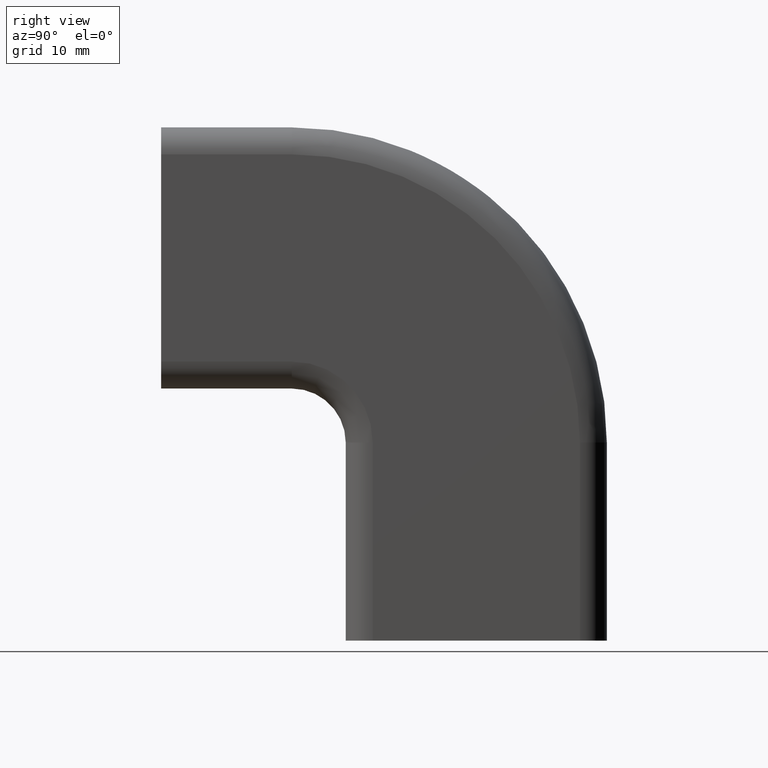
[diagram: clean part render]
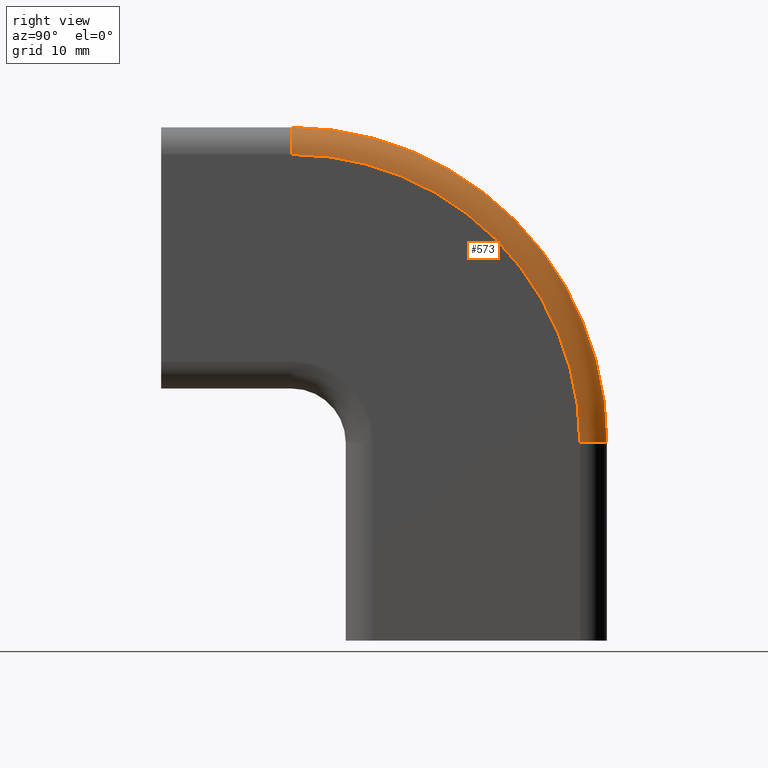
[diagram: same view with one face highlighted and labeled with its STEP entity id]
A machine part, right view. The second image highlights one B-rep face of the part: STEP entity #573.
In plain terms, the highlighted face is a freeform B-spline surface patch.
Its self-contained STEP definition (entity closure, byte-faithful):
#17=B_SPLINE_SURFACE_WITH_KNOTS('',3,3,((#1154,#1155,#1156,#1157,#1158,
#1159,#1160,#1161,#1162,#1163,#1164),(#1165,#1166,#1167,#1168,#1169,#1170,
#1171,#1172,#1173,#1174,#1175),(#1176,#1177,#1178,#1179,#1180,#1181,#1182,
#1183,#1184,#1185,#1186),(#1187,#1188,#1189,#1190,#1191,#1192,#1193,#1194,
#1195,#1196,#1197),(#1198,#1199,#1200,#1201,#1202,#1203,#1204,#1205,#1206,
#1207,#1208),(#1209,#1210,#1211,#1212,#1213,#1214,#1215,#1216,#1217,#1218,
#1219),(#1220,#1221,#1222,#1223,#1224,#1225,#1226,#1227,#1228,#1229,#1230)),
 .UNSPECIFIED.,.F.,.F.,.F.,(4,1,1,1,4),(4,1,1,1,1,1,1,1,4),(-0.00636065542696376,
1.17054193209677,2.34108386419354,3.51162579629031,4.68216772838708),(-0.00636065542696376,
6.62756652958003,13.2551330591601,19.8826995887401,26.5102661183201,33.1378326479002,
39.7653991774802,46.3929657070602,53.0268928920672),.UNSPECIFIED.);
#155=FACE_OUTER_BOUND('',#199,.T.);
#199=EDGE_LOOP('',(#517,#518,#519,#520));
#225=CIRCLE('',#619,3.);
#226=CIRCLE('',#621,3.);
#232=CIRCLE('',#632,32.);
#236=CIRCLE('',#641,35.);
#279=VERTEX_POINT('',#944);
#280=VERTEX_POINT('',#946);
#281=VERTEX_POINT('',#950);
#282=VERTEX_POINT('',#952);
#340=EDGE_CURVE('',#279,#280,#225,.T.);
#342=EDGE_CURVE('',#281,#282,#226,.T.);
#357=EDGE_CURVE('',#281,#279,#232,.T.);
#366=EDGE_CURVE('',#282,#280,#236,.T.);
#517=ORIENTED_EDGE('',*,*,#357,.T.);
#518=ORIENTED_EDGE('',*,*,#340,.T.);
#519=ORIENTED_EDGE('',*,*,#366,.F.);
#520=ORIENTED_EDGE('',*,*,#342,.F.);
#573=ADVANCED_FACE('',(#155),#17,.F.);
#619=AXIS2_PLACEMENT_3D('',#948,#755,#756);
#621=AXIS2_PLACEMENT_3D('',#953,#760,#761);
#632=AXIS2_PLACEMENT_3D('',#981,#791,#792);
#641=AXIS2_PLACEMENT_3D('',#995,#814,#815);
#755=DIRECTION('center_axis',(0.,0.,1.));
#756=DIRECTION('ref_axis',(1.,0.,0.));
#760=DIRECTION('center_axis',(0.,-1.,0.));
#761=DIRECTION('ref_axis',(1.,0.,0.));
#791=DIRECTION('center_axis',(-1.,0.,0.));
#792=DIRECTION('ref_axis',(0.,-1.,0.));
#814=DIRECTION('center_axis',(-1.,0.,0.));
#815=DIRECTION('ref_axis',(0.,-1.,0.));
#944=CARTESIAN_POINT('',(15.,6.99500000000262,22.));
#946=CARTESIAN_POINT('',(12.,9.99500000000262,22.));
#948=CARTESIAN_POINT('Origin',(12.,6.99500000000262,22.));
#950=CARTESIAN_POINT('',(15.,-25.0049999999973,54.));
#952=CARTESIAN_POINT('',(12.,-25.0049999999973,57.));
#953=CARTESIAN_POINT('Origin',(12.,-25.0049999999973,54.));
#981=CARTESIAN_POINT('Origin',(15.,-25.0049999999973,22.));
#995=CARTESIAN_POINT('Origin',(12.,-25.0049999999973,22.));
#1154=CARTESIAN_POINT('Ctrl Pts',(14.9999930844305,-25.0110192487128,53.9936391586718));
#1155=CARTESIAN_POINT('Ctrl Pts',(14.9999930844305,-22.9184072849306,53.9940354045308));
#1156=CARTESIAN_POINT('Ctrl Pts',(14.9999930844305,-18.7234951160519,53.5817521289283));
#1157=CARTESIAN_POINT('Ctrl Pts',(14.9999930844305,-12.68305651139,51.7488050904924));
#1158=CARTESIAN_POINT('Ctrl Pts',(14.9999930844305,-7.11559542026988,48.7732271924219));
#1159=CARTESIAN_POINT('Ctrl Pts',(14.9999930844305,-2.23627853268394,44.7687214673135));
#1160=CARTESIAN_POINT('Ctrl Pts',(14.9999930844305,1.76822719242448,39.8894045797275));
#1161=CARTESIAN_POINT('Ctrl Pts',(14.9999930844305,4.74380509049498,34.3219434886074));
#1162=CARTESIAN_POINT('Ctrl Pts',(14.9999930844305,6.57675212893094,28.2815048839455));
#1163=CARTESIAN_POINT('Ctrl Pts',(14.9999930844305,6.98903540453342,24.0865927150668));
#1164=CARTESIAN_POINT('Ctrl Pts',(14.9999930844305,6.98863915867437,21.9939807512847));
#1165=CARTESIAN_POINT('Ctrl Pts',(15.0008461936363,-25.011093046795,54.3858922997601));
#1166=CARTESIAN_POINT('Ctrl Pts',(15.0008461936363,-22.8928249326825,54.3862934037312));
#1167=CARTESIAN_POINT('Ctrl Pts',(15.0008461936363,-18.6464816819355,53.9689553918084));
#1168=CARTESIAN_POINT('Ctrl Pts',(15.0008461936363,-12.5319851995661,52.1135357853188));
#1169=CARTESIAN_POINT('Ctrl Pts',(15.0008461936363,-6.8962650995209,49.1014762675338));
#1170=CARTESIAN_POINT('Ctrl Pts',(15.0008461936363,-1.95712609023042,45.047873909767));
#1171=CARTESIAN_POINT('Ctrl Pts',(15.0008461936363,2.09647626753643,40.1087349004765));
#1172=CARTESIAN_POINT('Ctrl Pts',(15.0008461936363,5.10853578532149,34.4730148004312));
#1173=CARTESIAN_POINT('Ctrl Pts',(15.0008461936363,6.96395539181104,28.3585183180619));
#1174=CARTESIAN_POINT('Ctrl Pts',(15.0008461936363,7.38129340373379,24.1121750673149));
#1175=CARTESIAN_POINT('Ctrl Pts',(15.0008461936363,7.38089229976272,21.9939069532023));
#1176=CARTESIAN_POINT('Ctrl Pts',(14.8450929859816,-25.0112419370014,55.1772767001776));
#1177=CARTESIAN_POINT('Ctrl Pts',(14.8450929859816,-22.8412116442867,55.1776876055592));
#1178=CARTESIAN_POINT('Ctrl Pts',(14.8450929859816,-18.4911043911045,54.7501514867175));
#1179=CARTESIAN_POINT('Ctrl Pts',(14.8450929859816,-12.2271935560977,52.8493926899653));
#1180=CARTESIAN_POINT('Ctrl Pts',(14.8450929859816,-6.45375852354374,49.7637302313244));
#1181=CARTESIAN_POINT('Ctrl Pts',(14.8450929859816,-1.39392629613017,45.6110737038672));
#1182=CARTESIAN_POINT('Ctrl Pts',(14.8450929859816,2.75873023132698,40.5512414764537));
#1183=CARTESIAN_POINT('Ctrl Pts',(14.8450929859816,5.84439268996791,34.7778064438997));
#1184=CARTESIAN_POINT('Ctrl Pts',(14.8450929859816,7.74515148672011,28.5138956088929));
#1185=CARTESIAN_POINT('Ctrl Pts',(14.8450929859816,8.17268760556176,24.1637883557108));
#1186=CARTESIAN_POINT('Ctrl Pts',(14.8450929859816,8.17227670018017,21.993758062996));
#1187=CARTESIAN_POINT('Ctrl Pts',(14.1762387344188,-25.011429880525,56.1762381256584));
#1188=CARTESIAN_POINT('Ctrl Pts',(14.1762387344188,-22.77606039273,56.1766614033221));
#1189=CARTESIAN_POINT('Ctrl Pts',(14.1762387344188,-18.2949722461518,55.7362522541053));
#1190=CARTESIAN_POINT('Ctrl Pts',(14.1762387344188,-11.8424562596924,53.778261975268));
#1191=CARTESIAN_POINT('Ctrl Pts',(14.1762387344188,-5.89518420783874,50.5996908129956));
#1192=CARTESIAN_POINT('Ctrl Pts',(14.1762387344188,-0.683001404449067,46.3219985955483));
#1193=CARTESIAN_POINT('Ctrl Pts',(14.1762387344188,3.59469081299823,41.1098157921586));
#1194=CARTESIAN_POINT('Ctrl Pts',(14.1762387344188,6.77326197527066,35.162543740305));
#1195=CARTESIAN_POINT('Ctrl Pts',(14.1762387344188,8.73125225410796,28.7100277538456));
#1196=CARTESIAN_POINT('Ctrl Pts',(14.1762387344188,9.17166140332465,24.2289396072674));
#1197=CARTESIAN_POINT('Ctrl Pts',(14.1762387344188,9.17123812566099,21.9935701194724));
#1198=CARTESIAN_POINT('Ctrl Pts',(13.1790834520298,-25.0115554905201,56.8438830509998));
#1199=CARTESIAN_POINT('Ctrl Pts',(13.1790834520298,-22.7325172674681,56.8443145975427));
#1200=CARTESIAN_POINT('Ctrl Pts',(13.1790834520298,-18.1638894756525,56.3953018994957));
#1201=CARTESIAN_POINT('Ctrl Pts',(13.1790834520298,-11.5853213023431,54.3990615865638));
#1202=CARTESIAN_POINT('Ctrl Pts',(13.1790834520298,-5.52186718298262,51.1583959100114));
#1203=CARTESIAN_POINT('Ctrl Pts',(13.1790834520298,-0.207862541102696,46.7971374588947));
#1204=CARTESIAN_POINT('Ctrl Pts',(13.1790834520298,4.15339591001405,41.4831328170148));
#1205=CARTESIAN_POINT('Ctrl Pts',(13.1790834520298,7.3940615865664,35.4196786976542));
#1206=CARTESIAN_POINT('Ctrl Pts',(13.1790834520298,9.39030189949836,28.8411105243449));
#1207=CARTESIAN_POINT('Ctrl Pts',(13.1790834520298,9.83931459754531,24.2724827325293));
#1208=CARTESIAN_POINT('Ctrl Pts',(13.1790834520298,9.83888305100246,21.9934445094773));
#1209=CARTESIAN_POINT('Ctrl Pts',(12.3901806440323,-25.011584862077,56.9999993765664));
#1210=CARTESIAN_POINT('Ctrl Pts',(12.3901806440323,-22.7223355189644,57.0004328566325));
#1211=CARTESIAN_POINT('Ctrl Pts',(12.3901806440323,-18.1332382122359,56.5494083790015));
#1212=CARTESIAN_POINT('Ctrl Pts',(12.3901806440323,-11.5251950837614,54.5442240083092));
#1213=CARTESIAN_POINT('Ctrl Pts',(12.3901806440323,-5.43457395273428,51.2890386865993));
#1214=CARTESIAN_POINT('Ctrl Pts',(12.3901806440323,-0.096760171169223,46.9082398288282));
#1215=CARTESIAN_POINT('Ctrl Pts',(12.3901806440323,4.2840386866019,41.5704260472631));
#1216=CARTESIAN_POINT('Ctrl Pts',(12.3901806440323,7.53922400831185,35.479804916236));
#1217=CARTESIAN_POINT('Ctrl Pts',(12.3901806440323,9.54440837900415,28.8717617877615));
#1218=CARTESIAN_POINT('Ctrl Pts',(12.3901806440323,9.99543285663516,24.282664481033));
#1219=CARTESIAN_POINT('Ctrl Pts',(12.3901806440323,9.99499937656899,21.9934151379204));
#1220=CARTESIAN_POINT('Ctrl Pts',(12.,-25.011584862077,56.9999993765664));
#1221=CARTESIAN_POINT('Ctrl Pts',(12.,-22.7223355189644,57.0004328566325));
#1222=CARTESIAN_POINT('Ctrl Pts',(12.,-18.1332382122359,56.5494083790015));
#1223=CARTESIAN_POINT('Ctrl Pts',(12.,-11.5251950837614,54.5442240083092));
#1224=CARTESIAN_POINT('Ctrl Pts',(12.,-5.43457395273428,51.2890386865993));
#1225=CARTESIAN_POINT('Ctrl Pts',(12.,-0.096760171169223,46.9082398288282));
#1226=CARTESIAN_POINT('Ctrl Pts',(12.,4.2840386866019,41.5704260472631));
#1227=CARTESIAN_POINT('Ctrl Pts',(12.,7.53922400831185,35.479804916236));
#1228=CARTESIAN_POINT('Ctrl Pts',(12.,9.54440837900414,28.8717617877615));
#1229=CARTESIAN_POINT('Ctrl Pts',(12.,9.99543285663517,24.282664481033));
#1230=CARTESIAN_POINT('Ctrl Pts',(12.,9.99499937656899,21.9934151379204));